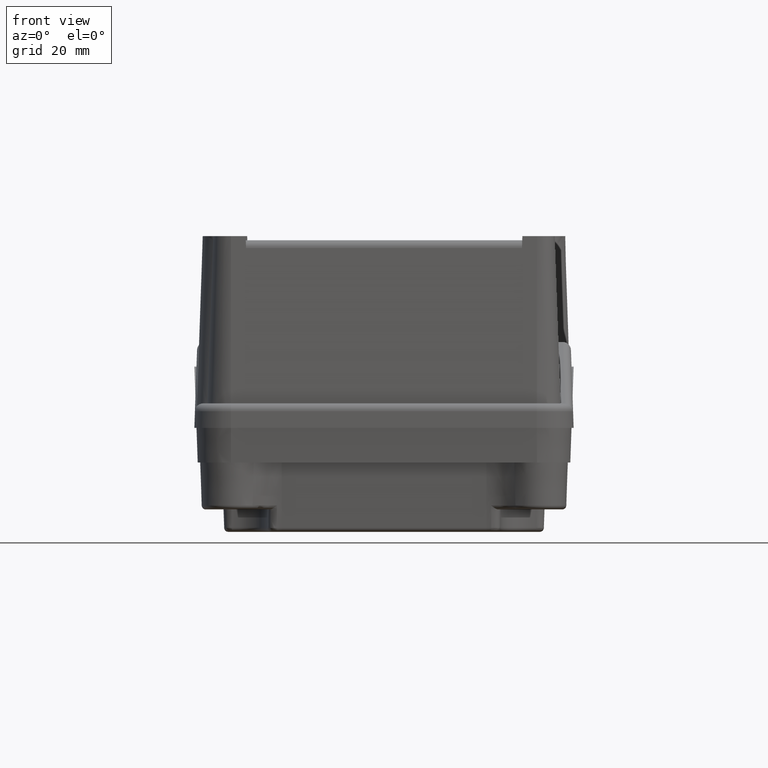
[diagram: clean part render]
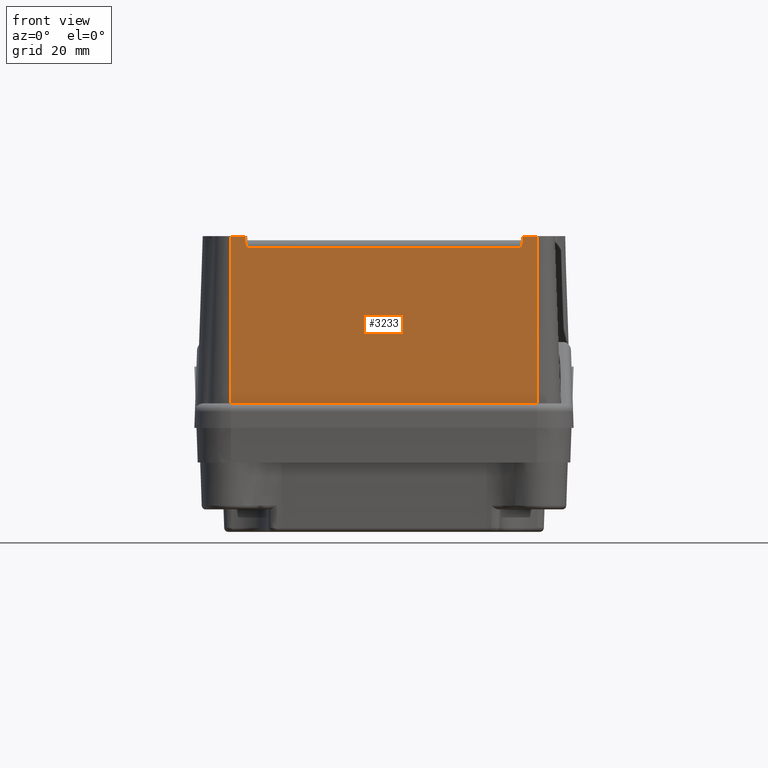
[diagram: same view with one face highlighted and labeled with its STEP entity id]
A machine part, front view. The second image highlights one B-rep face of the part: STEP entity #3233.
In plain terms, the highlighted planar face has unit normal (0, -0.9994, 0.0349).
Its self-contained STEP definition (entity closure, byte-faithful):
#2769=CARTESIAN_POINT('',(68.885091562884426,-23.690888373613028,6.000000000000014));
#2770=VERTEX_POINT('',#2769);
#2778=CARTESIAN_POINT('',(-6.114908437115658,-23.690888373613028,6.000000000000014));
#2779=VERTEX_POINT('',#2778);
#2780=CARTESIAN_POINT('',(-6.114908437115658,-23.690888373613028,6.000000000000014));
#2781=DIRECTION('',(1.0,0.0,0.0));
#2782=VECTOR('',#2781,75.000000000000085);
#2783=LINE('',#2780,#2782);
#2784=EDGE_CURVE('',#2779,#2770,#2783,.T.);
#3145=CARTESIAN_POINT('',(-2.441148936071174,-22.361461698367158,44.069798993405001));
#3146=VERTEX_POINT('',#3145);
#3154=CARTESIAN_POINT('',(65.211332061839954,-22.361461698367158,44.069798993405001));
#3155=VERTEX_POINT('',#3154);
#3156=CARTESIAN_POINT('',(-2.441148936071174,-22.361461698367158,44.069798993405001));
#3157=DIRECTION('',(1.0,0.0,0.0));
#3158=VECTOR('',#3157,67.652480997911127);
#3159=LINE('',#3156,#3158);
#3160=EDGE_CURVE('',#3146,#3155,#3159,.T.);
#3180=CARTESIAN_POINT('',(-6.114908437115658,-22.294057593943116,46.000000000000007));
#3181=DIRECTION('',(0.0,-0.999390827019096,0.034899496702501));
#3182=DIRECTION('',(-1.0,0.0,0.0));
#3183=AXIS2_PLACEMENT_3D('',#3180,#3181,#3182);
#3184=PLANE('',#3183);
#3185=CARTESIAN_POINT('',(65.313656935755745,-22.259136824451371,47.0));
#3186=VERTEX_POINT('',#3185);
#3187=CARTESIAN_POINT('',(65.211332061839954,-22.361461698367158,44.069798993405001));
#3188=DIRECTION('',(0.034878262742374,0.034878262742373,0.998782765958718));
#3189=VECTOR('',#3188,2.933772093857004);
#3190=LINE('',#3187,#3189);
#3191=EDGE_CURVE('',#3155,#3186,#3190,.T.);
#3192=ORIENTED_EDGE('',*,*,#3191,.F.);
#3193=ORIENTED_EDGE('',*,*,#3160,.F.);
#3194=CARTESIAN_POINT('',(-2.543473809986963,-22.259136824451371,47.0));
#3195=VERTEX_POINT('',#3194);
#3196=CARTESIAN_POINT('',(-2.441148936071174,-22.361461698367158,44.069798993405001));
#3197=DIRECTION('',(-0.034878262742374,0.034878262742373,0.998782765958718));
#3198=VECTOR('',#3197,2.933772093857004);
#3199=LINE('',#3196,#3198);
#3200=EDGE_CURVE('',#3146,#3195,#3199,.T.);
#3201=ORIENTED_EDGE('',*,*,#3200,.T.);
#3202=CARTESIAN_POINT('',(-6.114908437115658,-22.259136824451375,47.0));
#3203=VERTEX_POINT('',#3202);
#3204=CARTESIAN_POINT('',(-2.543473809986963,-22.259136824451371,47.0));
#3205=DIRECTION('',(-1.0,0.0,0.0));
#3206=VECTOR('',#3205,3.571434627128695);
#3207=LINE('',#3204,#3206);
#3208=EDGE_CURVE('',#3195,#3203,#3207,.T.);
#3209=ORIENTED_EDGE('',*,*,#3208,.T.);
#3210=CARTESIAN_POINT('',(-6.114908437115658,-23.690888373613028,6.000000000000014));
#3211=DIRECTION('',(0.0,0.034899496702501,0.999390827019096));
#3212=VECTOR('',#3211,41.024991316251679);
#3213=LINE('',#3210,#3212);
#3214=EDGE_CURVE('',#2779,#3203,#3213,.T.);
#3215=ORIENTED_EDGE('',*,*,#3214,.F.);
#3216=ORIENTED_EDGE('',*,*,#2784,.T.);
#3217=CARTESIAN_POINT('',(68.885091562884426,-22.259136824451371,47.0));
#3218=VERTEX_POINT('',#3217);
#3219=CARTESIAN_POINT('',(68.885091562884426,-23.690888373613028,6.000000000000014));
#3220=DIRECTION('',(0.0,0.034899496702501,0.999390827019096));
#3221=VECTOR('',#3220,41.024991316251679);
#3222=LINE('',#3219,#3221);
#3223=EDGE_CURVE('',#2770,#3218,#3222,.T.);
#3224=ORIENTED_EDGE('',*,*,#3223,.T.);
#3225=CARTESIAN_POINT('',(68.885091562884426,-22.259136824451371,47.0));
#3226=DIRECTION('',(-1.0,0.0,0.0));
#3227=VECTOR('',#3226,3.571434627128681);
#3228=LINE('',#3225,#3227);
#3229=EDGE_CURVE('',#3218,#3186,#3228,.T.);
#3230=ORIENTED_EDGE('',*,*,#3229,.T.);
#3231=EDGE_LOOP('',(#3192,#3193,#3201,#3209,#3215,#3216,#3224,#3230));
#3232=FACE_OUTER_BOUND('',#3231,.T.);
#3233=ADVANCED_FACE('',(#3232),#3184,.T.);